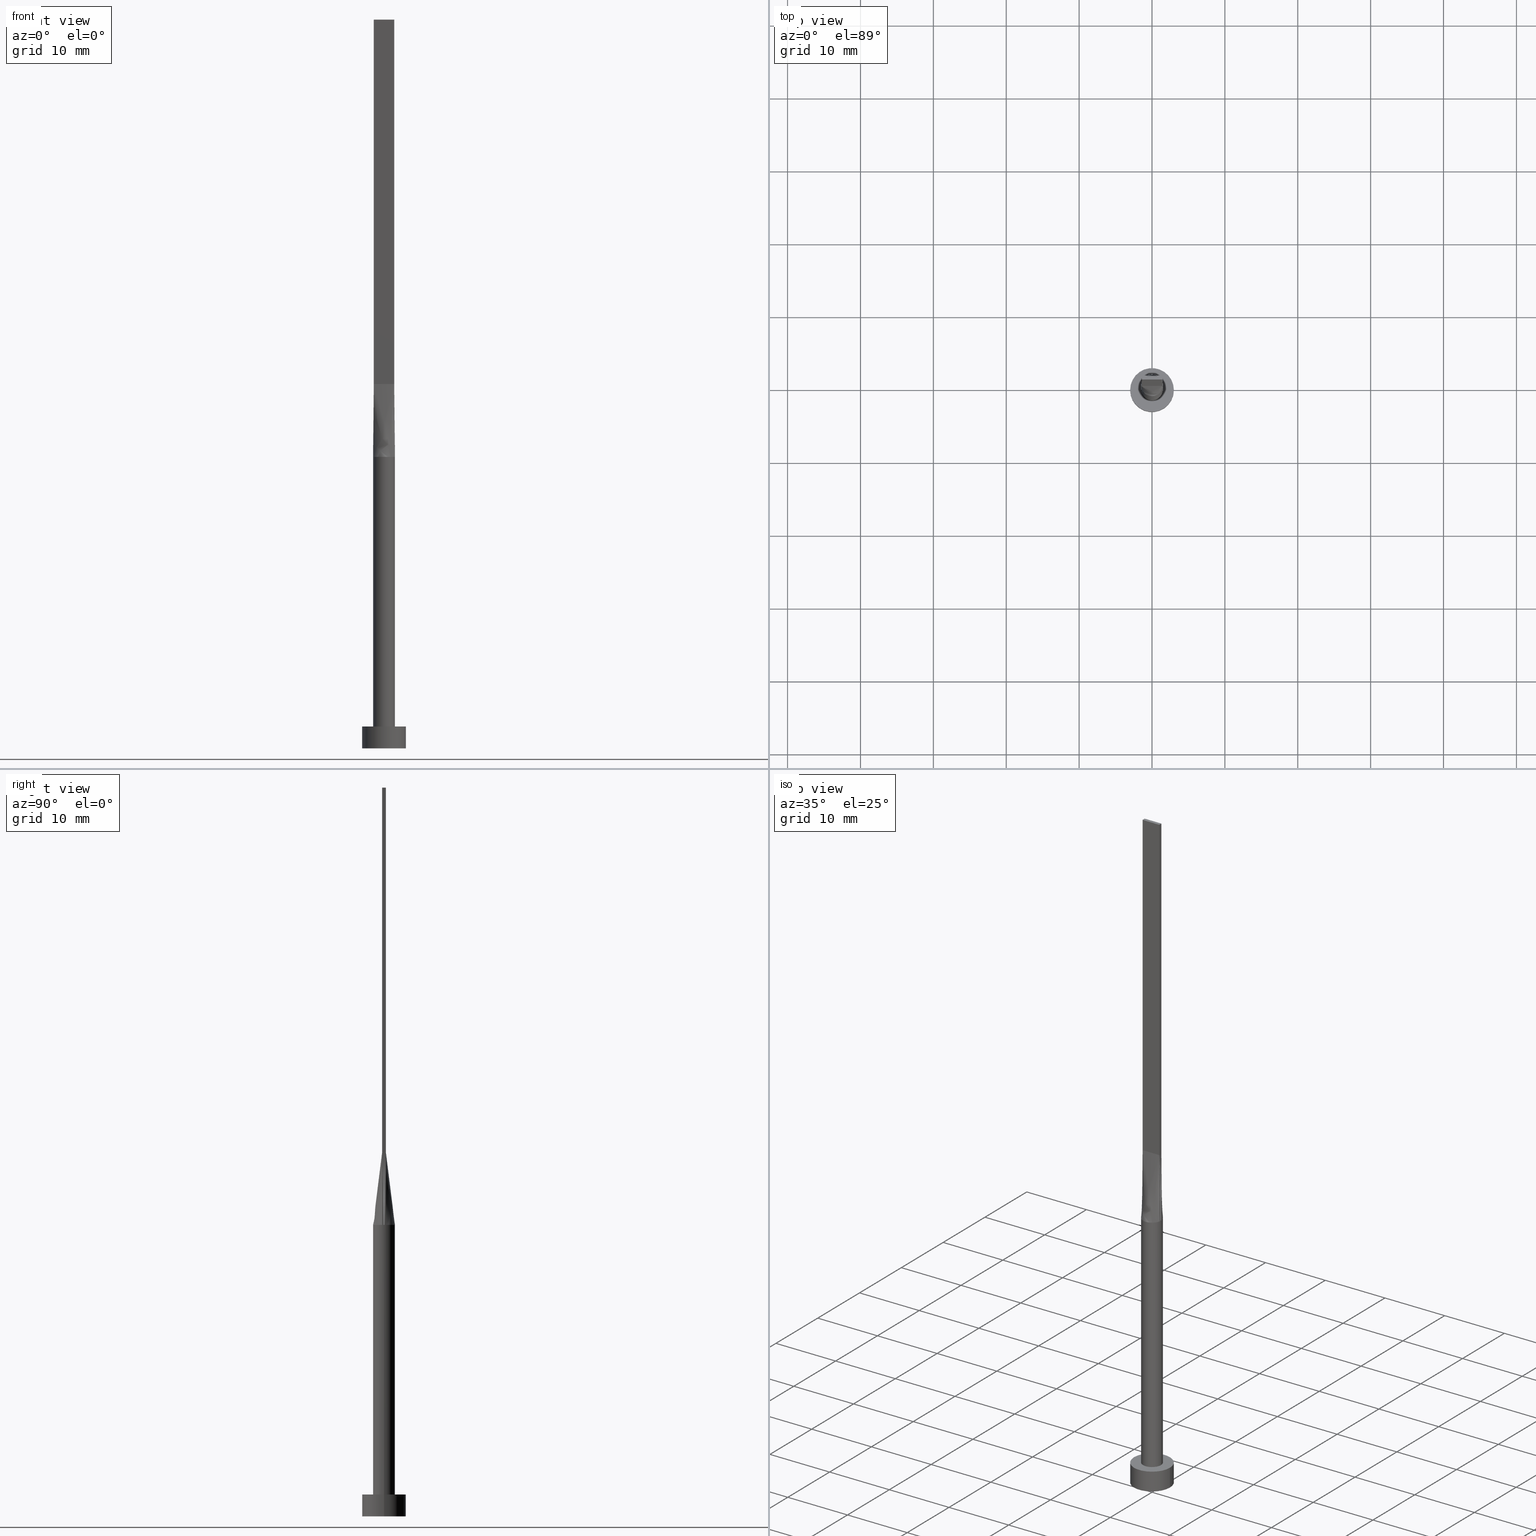
[diagram: canonical four-view strip — front | top / right | iso, engineering-drawing reading convention]
A machine part, canonical four-view strip (front | top / right | iso — engineering-drawing reading convention). The complete STEP part file that produces these views, byte-faithful:
ISO-10303-21;
HEADER;
FILE_DESCRIPTION (( 'STEP AP203' ),
    '1' );
FILE_NAME ('e68c.STEP',
    '2026-02-12T09:01:24',
    ( '' ),
    ( '' ),
    'SwSTEP 2.0',
    'SolidWorks 2019',
    '' );
FILE_SCHEMA (( 'CONFIG_CONTROL_DESIGN' ));
ENDSEC;

DATA;
#1 = ORIENTED_EDGE ( 'NONE', *, *, #581, .F. ) ;
#2 = APPROVAL_STATUS ( 'not_yet_approved' ) ;
#3 = EDGE_CURVE ( 'NONE', #275, #220, #289, .T. ) ;
#4 = EDGE_LOOP ( 'NONE', ( #313, #577, #367, #377 ) ) ;
#5 = ORIENTED_EDGE ( 'NONE', *, *, #11, .T. ) ;
#6 = ORIENTED_EDGE ( 'NONE', *, *, #461, .T. ) ;
#7 = CARTESIAN_POINT ( 'NONE',  ( -0.2093118330951414807, -1.500000000000000666, 40.00000000000000000 ) ) ;
#8 = DATE_TIME_ROLE ( 'classification_date' ) ;
#9 = ORIENTED_EDGE ( 'NONE', *, *, #145, .F. ) ;
#10 = VECTOR ( 'NONE', #28, 1000.000000000000000 ) ;
#11 = EDGE_CURVE ( 'NONE', #354, #326, #384, .T. ) ;
#12 = CARTESIAN_POINT ( 'NONE',  ( 0.5833333333333278192, -0.2499999999999996669, 50.00000000000000000 ) ) ;
#13 = CARTESIAN_POINT ( 'NONE',  ( -1.455009719257779111, -0.3848231641531742464, 39.99999999999999289 ) ) ;
#14 = MECHANICAL_CONTEXT ( 'NONE', #60, 'mechanical' ) ;
#15 = CARTESIAN_POINT ( 'NONE',  ( 1.476641363262723106, -0.2636859577254864750, 40.00000000000000000 ) ) ;
#16 = CARTESIAN_POINT ( 'NONE',  ( 0.7852726932053983866, -1.293660568283137247, 40.00000000000000711 ) ) ;
#17 = CARTESIAN_POINT ( 'NONE',  ( 1.399999999999999911, 0.08333333333333360626, 50.00000000000000000 ) ) ;
#18 = EDGE_LOOP ( 'NONE', ( #139, #6, #144, #181 ) ) ;
#19 = DIRECTION ( 'NONE',  ( 1.000000000000000000, 0.000000000000000000, 0.000000000000000000 ) ) ;
#20 = LOCAL_TIME ( 10, 1, 24.00000000000000000, #194 ) ;
#21 = CARTESIAN_POINT ( 'NONE',  ( -1.193588737715979731, -0.9257784320005619794, 40.00000000000000000 ) ) ;
#22 = EDGE_CURVE ( 'NONE', #98, #217, #387, .T. ) ;
#23 = LINE ( 'NONE', #559, #10 ) ;
#24 = CARTESIAN_POINT ( 'NONE',  ( -1.166666666666668517, -0.2499999999999996669, 50.00000000000000000 ) ) ;
#25 = CARTESIAN_POINT ( 'NONE',  ( 1.399999999999999911, 0.1666666666666669072, 50.00000000000000000 ) ) ;
#26 = CARTESIAN_POINT ( 'NONE',  ( -1.416287091352355976, 0.5163978007200225040, 40.00000000000001421 ) ) ;
#27 = CARTESIAN_POINT ( 'NONE',  ( 1.500000000000000222, 1.836970198721030181E-16, 40.00000000000000000 ) ) ;
#28 = DIRECTION ( 'NONE',  ( -0.000000000000000000, 1.000000000000000000, -0.000000000000000000 ) ) ;
#29 = DIRECTION ( 'NONE',  ( 0.000000000000000000, 0.000000000000000000, 1.000000000000000000 ) ) ;
#30 = CARTESIAN_POINT ( 'NONE',  ( 3.000000000000000444, 3.673940397442060361E-16, 3.000000000000000000 ) ) ;
#31 = LOCAL_TIME ( 10, 1, 24.00000000000000000, #540 ) ;
#32 = DIRECTION ( 'NONE',  ( 1.000000000000000000, -7.105427357601001859E-15, 0.000000000000000000 ) ) ;
#33 = CARTESIAN_POINT ( 'NONE',  ( 1.476765312825354837, 0.2637079867918904474, 40.00000000000000000 ) ) ;
#34 = CARTESIAN_POINT ( 'NONE',  ( 1.399999999999999911, -0.2499999999999997780, 100.0000000000000000 ) ) ;
#35 = B_SPLINE_SURFACE_WITH_KNOTS ( 'NONE', 3, 1, ( 
 ( #418, #421 ),
 ( #13, #164 ),
 ( #510, #24 ),
 ( #112, #554 ),
 ( #21, #61 ),
 ( #495, #420 ),
 ( #328, #197 ),
 ( #412, #330 ),
 ( #7, #369 ),
 ( #160, #277 ),
 ( #333, #101 ),
 ( #16, #546 ),
 ( #458, #12 ),
 ( #284, #454 ),
 ( #109, #234 ),
 ( #195, #238 ),
 ( #232, #378 ),
 ( #15, #286 ) ),
 .UNSPECIFIED., .F., .F., .F.,
 ( 4, 2, 2, 2, 2, 2, 2, 2, 4 ),
 ( 2, 2 ),
 ( 0.000000000000000000, 0.1250000000000000000, 0.2500000000000000000, 0.3750000000000000000, 0.5000000000000000000, 0.6250000000000000000, 0.7500000000000000000, 0.8750000000000000000, 1.000000000000000000 ),
 ( 0.000000000000000000, 1.000000000000000000 ),
 .UNSPECIFIED. ) ;
#36 = PLANE ( 'NONE',  #300 ) ;
#37 = CIRCLE ( 'NONE', #127, 3.000000000000000444 ) ;
#38 = ORIENTED_EDGE ( 'NONE', *, *, #89, .T. ) ;
#39 = EDGE_CURVE ( 'NONE', #98, #372, #513, .T. ) ;
#40 = DIRECTION ( 'NONE',  ( 1.000000000000000000, 0.000000000000000000, 0.000000000000000000 ) ) ;
#41 = CARTESIAN_POINT ( 'NONE',  ( -1.455009719257779111, 0.3848231641531745795, 40.00000000000000000 ) ) ;
#42 = EDGE_CURVE ( 'NONE', #372, #505, #257, .T. ) ;
#43 = EDGE_CURVE ( 'NONE', #401, #326, #562, .T. ) ;
#44 = CIRCLE ( 'NONE', #370, 3.000000000000000444 ) ;
#45 = AXIS2_PLACEMENT_3D ( 'NONE', #227, #498, #406 ) ;
#46 = ORIENTED_EDGE ( 'NONE', *, *, #309, .F. ) ;
#47 = PERSON_AND_ORGANIZATION ( #337, #468 ) ;
#48 = CARTESIAN_POINT ( 'NONE',  ( 0.8166666666666670960, 0.2500000000000002220, 50.00000000000000000 ) ) ;
#49 = PERSON_AND_ORGANIZATION ( #337, #468 ) ;
#50 = CARTESIAN_POINT ( 'NONE',  ( -1.476780214353118348, -0.2637106662004926605, 40.00000000000000000 ) ) ;
#51 = CARTESIAN_POINT ( 'NONE',  ( 0.9436169880431070078, 1.179536671679307869, 39.99999999999998579 ) ) ;
#52 = ADVANCED_FACE ( 'NONE', ( #346 ), #515, .T. ) ;
#53 = PERSON_AND_ORGANIZATION_ROLE ( 'design_supplier' ) ;
#54 = DIRECTION ( 'NONE',  ( -0.000000000000000000, -0.000000000000000000, -1.000000000000000000 ) ) ;
#55 = VECTOR ( 'NONE', #580, 1000.000000000000000 ) ;
#56 = CALENDAR_DATE ( 2026, 12, 2 ) ;
#57 = ADVANCED_FACE ( 'NONE', ( #298 ), #75, .T. ) ;
#58 = CC_DESIGN_APPROVAL ( #352, ( #271 ) ) ;
#59 = CARTESIAN_POINT ( 'NONE',  ( -1.399999999999999911, -0.2499999999999996392, 100.0000000000000000 ) ) ;
#60 = APPLICATION_CONTEXT ( 'configuration controlled 3d designs of mechanical parts and assemblies' ) ;
#61 = CARTESIAN_POINT ( 'NONE',  ( -0.8166666666666710928, -0.2499999999999996669, 50.00000000000000000 ) ) ;
#62 = FACE_BOUND ( 'NONE', #202, .T. ) ;
#63 = CARTESIAN_POINT ( 'NONE',  ( 1.476641363262723328, 0.2636859577254862530, 40.00000000000000000 ) ) ;
#64 =( LENGTH_UNIT ( ) NAMED_UNIT ( * ) SI_UNIT ( .MILLI., .METRE. ) );
#65 = CIRCLE ( 'NONE', #381, 1.500000000000000222 ) ;
#66 = CARTESIAN_POINT ( 'NONE',  ( 1.476765312825354837, 0.2637079867918904474, 40.00000000000000000 ) ) ;
#67 = DIRECTION ( 'NONE',  ( -0.000000000000000000, -0.000000000000000000, -1.000000000000000000 ) ) ;
#68 = DIRECTION ( 'NONE',  ( 1.000000000000000000, 0.000000000000000000, -0.000000000000000000 ) ) ;
#69 = FACE_OUTER_BOUND ( 'NONE', #87, .T. ) ;
#70 = CARTESIAN_POINT ( 'NONE',  ( 1.399999999999999911, -0.2499999999999997780, 100.0000000000000000 ) ) ;
#71 = CARTESIAN_POINT ( 'NONE',  ( 0.000000000000000000, 0.000000000000000000, 0.000000000000000000 ) ) ;
#72 = CARTESIAN_POINT ( 'NONE',  ( -1.399999999999999911, -0.08333333333333300952, 50.00000000000000000 ) ) ;
#73 = VECTOR ( 'NONE', #391, 999.9999999999998863 ) ;
#74 = CARTESIAN_POINT ( 'NONE',  ( 1.399999999999999911, 0.2500000000000002220, 50.00000000000000000 ) ) ;
#75 = CYLINDRICAL_SURFACE ( 'NONE', #210, 1.500000000000000222 ) ;
#76 = VECTOR ( 'NONE', #465, 1000.000000000000000 ) ;
#77 = ORIENTED_EDGE ( 'NONE', *, *, #279, .F. ) ;
#78 = FACE_OUTER_BOUND ( 'NONE', #382, .T. ) ;
#79 = CARTESIAN_POINT ( 'NONE',  ( -1.476641363262723328, 0.2636859577254859754, 40.00000000000000000 ) ) ;
#80 = PRODUCT ( 'e68c', 'e68c', '', ( #14 ) ) ;
#81 = ORIENTED_EDGE ( 'NONE', *, *, #431, .T. ) ;
#82 = DIRECTION ( 'NONE',  ( -0.007663904067361680499, 0.001368554297743197626, 0.9999696953576046043 ) ) ;
#83 = CARTESIAN_POINT ( 'NONE',  ( -1.476641363262723328, -0.2636859577254855869, 40.00000000000000000 ) ) ;
#84 = EDGE_CURVE ( 'NONE', #556, #304, #137, .T. ) ;
#85 = CARTESIAN_POINT ( 'NONE',  ( 3.000000000000000444, 3.673940397442060361E-16, 0.000000000000000000 ) ) ;
#86 = VECTOR ( 'NONE', #82, 999.9999999999998863 ) ;
#87 = EDGE_LOOP ( 'NONE', ( #103, #497, #338, #262, #395, #148 ) ) ;
#88 = ORIENTED_EDGE ( 'NONE', *, *, #409, .T. ) ;
#89 = EDGE_CURVE ( 'NONE', #217, #505, #307, .T. ) ;
#90 = VERTEX_POINT ( 'NONE', #85 ) ;
#91 = COORDINATED_UNIVERSAL_TIME_OFFSET ( 1, 0, .AHEAD. ) ;
#92 = EDGE_CURVE ( 'NONE', #191, #539, #402, .T. ) ;
#93 = LOCAL_TIME ( 10, 1, 24.00000000000000000, #329 ) ;
#94 = PERSON_AND_ORGANIZATION_ROLE ( 'creator' ) ;
#95 = ORIENTED_EDGE ( 'NONE', *, *, #319, .T. ) ;
#96 = CARTESIAN_POINT ( 'NONE',  ( 1.399999999999999911, -0.2499999999999997780, 100.0000000000000000 ) ) ;
#97 = PRODUCT_RELATED_PRODUCT_CATEGORY ( 'detail', '', ( #80 ) ) ;
#98 = VERTEX_POINT ( 'NONE', #438 ) ;
#99 = CALENDAR_DATE ( 2026, 12, 2 ) ;
#100 = ORIENTED_EDGE ( 'NONE', *, *, #162, .T. ) ;
#101 = CARTESIAN_POINT ( 'NONE',  ( 0.2333333333333268145, -0.2499999999999996669, 50.00000000000000000 ) ) ;
#102 = EDGE_CURVE ( 'NONE', #326, #401, #388, .T. ) ;
#103 = ORIENTED_EDGE ( 'NONE', *, *, #11, .F. ) ;
#104 = PERSON_AND_ORGANIZATION ( #337, #468 ) ;
#105 = DIRECTION ( 'NONE',  ( 0.000000000000000000, 1.000000000000000000, 0.000000000000000000 ) ) ;
#106 = CARTESIAN_POINT ( 'NONE',  ( -1.399999999999999911, 0.2500000000000002220, 50.00000000000000000 ) ) ;
#107 = CARTESIAN_POINT ( 'NONE',  ( -1.399999999999999911, 0.2500000000000002220, 100.0000000000000000 ) ) ;
#108 = EDGE_LOOP ( 'NONE', ( #236, #152, #411, #111, #440 ) ) ;
#109 = CARTESIAN_POINT ( 'NONE',  ( 1.285860877433234961, -0.7868275653575079742, 40.00000000000000711 ) ) ;
#110 = CARTESIAN_POINT ( 'NONE',  ( 1.399999999999999911, -0.2499999999999997780, 50.00000000000000000 ) ) ;
#111 = ORIENTED_EDGE ( 'NONE', *, *, #568, .F. ) ;
#112 = CARTESIAN_POINT ( 'NONE',  ( -1.285860877433235405, -0.7868275653575071971, 40.00000000000000000 ) ) ;
#113 = DIRECTION ( 'NONE',  ( 0.000000000000000000, 0.000000000000000000, 1.000000000000000000 ) ) ;
#114 = AXIS2_PLACEMENT_3D ( 'NONE', #302, #444, #40 ) ;
#115 = CIRCLE ( 'NONE', #494, 1.500000000000000222 ) ;
#116 = CARTESIAN_POINT ( 'NONE',  ( 1.399999999999999911, 0.2500000000000002220, 100.0000000000000000 ) ) ;
#117 = PRODUCT_DEFINITION ( 'NEZN�M�', '', #271, #549 ) ;
#118 = PLANE ( 'NONE',  #146 ) ;
#119 = PLANE ( 'NONE',  #228 ) ;
#120 = CARTESIAN_POINT ( 'NONE',  ( 0.000000000000000000, 0.000000000000000000, 40.00000000000000000 ) ) ;
#121 = CARTESIAN_POINT ( 'NONE',  ( 0.000000000000000000, 0.000000000000000000, 40.00000000000000000 ) ) ;
#122 = CARTESIAN_POINT ( 'NONE',  ( -1.438320681631361619, -0.2568429788627425991, 45.00000000000000000 ) ) ;
#123 = DIRECTION ( 'NONE',  ( -1.000000000000000000, 0.000000000000000000, 0.000000000000000000 ) ) ;
#124 = ORIENTED_EDGE ( 'NONE', *, *, #102, .F. ) ;
#125 = DIRECTION ( 'NONE',  ( 0.000000000000000000, 0.000000000000000000, 1.000000000000000000 ) ) ;
#126 = LINE ( 'NONE', #254, #177 ) ;
#127 = AXIS2_PLACEMENT_3D ( 'NONE', #521, #29, #173 ) ;
#128 = LINE ( 'NONE', #122, #73 ) ;
#129 = VERTEX_POINT ( 'NONE', #446 ) ;
#130 = CARTESIAN_POINT ( 'NONE',  ( -0.9436169880431073409, 1.179536671679307647, 40.00000000000000000 ) ) ;
#131 = CARTESIAN_POINT ( 'NONE',  ( 0.000000000000000000, 0.000000000000000000, 40.00000000000000000 ) ) ;
#132 = DIRECTION ( 'NONE',  ( 1.000000000000000000, 0.000000000000000000, 0.000000000000000000 ) ) ;
#133 = ORIENTED_EDGE ( 'NONE', *, *, #461, .F. ) ;
#134 = CARTESIAN_POINT ( 'NONE',  ( -0.4666666666666664520, 0.2500000000000002220, 50.00000000000000000 ) ) ;
#135 = CARTESIAN_POINT ( 'NONE',  ( -1.399999999999999911, 0.2500000000000002220, 100.0000000000000000 ) ) ;
#136 = VERTEX_POINT ( 'NONE', #140 ) ;
#137 = CIRCLE ( 'NONE', #114, 1.500000000000000222 ) ;
#138 = EDGE_CURVE ( 'NONE', #129, #539, #259, .T. ) ;
#139 = ORIENTED_EDGE ( 'NONE', *, *, #487, .T. ) ;
#140 = CARTESIAN_POINT ( 'NONE',  ( 3.000000000000000444, 3.673940397442060361E-16, 3.000000000000000000 ) ) ;
#141 = ORIENTED_EDGE ( 'NONE', *, *, #84, .T. ) ;
#142 = SECURITY_CLASSIFICATION_LEVEL ( 'unclassified' ) ;
#143 = CALENDAR_DATE ( 2026, 12, 2 ) ;
#144 = ORIENTED_EDGE ( 'NONE', *, *, #89, .F. ) ;
#145 = EDGE_CURVE ( 'NONE', #214, #90, #360, .T. ) ;
#146 = AXIS2_PLACEMENT_3D ( 'NONE', #166, #113, #207 ) ;
#147 = EDGE_LOOP ( 'NONE', ( #81, #186, #460, #416 ) ) ;
#148 = ORIENTED_EDGE ( 'NONE', *, *, #43, .T. ) ;
#149 = LINE ( 'NONE', #96, #407 ) ;
#150 = FACE_OUTER_BOUND ( 'NONE', #147, .T. ) ;
#151 = CARTESIAN_POINT ( 'NONE',  ( 0.5833333333333337034, 0.2500000000000002220, 50.00000000000000000 ) ) ;
#152 = ORIENTED_EDGE ( 'NONE', *, *, #581, .T. ) ;
#153 = CARTESIAN_POINT ( 'NONE',  ( -1.399999999999999911, -0.2499999999999996392, 100.0000000000000000 ) ) ;
#154 = ORIENTED_EDGE ( 'NONE', *, *, #102, .T. ) ;
#155 = PERSON_AND_ORGANIZATION_ROLE ( 'classification_officer' ) ;
#156 = CARTESIAN_POINT ( 'NONE',  ( -1.399999999999999911, 0.2500000000000002220, 50.00000000000000000 ) ) ;
#157 = ADVANCED_FACE ( 'NONE', ( #78 ), #216, .F. ) ;
#158 = VECTOR ( 'NONE', #213, 1000.000000000000000 ) ;
#159 = CC_DESIGN_DATE_AND_TIME_ASSIGNMENT ( #364, #551, ( #117 ) ) ;
#160 = CARTESIAN_POINT ( 'NONE',  ( 0.2093118330951404815, -1.500000000000000444, 39.99999999999998579 ) ) ;
#161 = CARTESIAN_POINT ( 'NONE',  ( 1.399999999999999911, 0.2500000000000002220, 50.00000000000000000 ) ) ;
#162 = EDGE_CURVE ( 'NONE', #572, #214, #477, .T. ) ;
#163 = CARTESIAN_POINT ( 'NONE',  ( -0.4178861784692550208, 1.454504042781961326, 40.00000000000000711 ) ) ;
#164 = CARTESIAN_POINT ( 'NONE',  ( -1.283333333333334325, -0.2499999999999996669, 50.00000000000000000 ) ) ;
#165 = CARTESIAN_POINT ( 'NONE',  ( 0.000000000000000000, 0.000000000000000000, 3.000000000000000000 ) ) ;
#166 = CARTESIAN_POINT ( 'NONE',  ( 0.000000000000000000, 0.000000000000000000, 3.000000000000000000 ) ) ;
#167 = LOCAL_TIME ( 10, 1, 24.00000000000000000, #91 ) ;
#168 = CARTESIAN_POINT ( 'NONE',  ( 1.285860877433235405, 0.7868275653575075301, 40.00000000000000000 ) ) ;
#169 = DIRECTION ( 'NONE',  ( 0.000000000000000000, 0.000000000000000000, 1.000000000000000000 ) ) ;
#170 = CARTESIAN_POINT ( 'NONE',  ( 1.399999999999999911, -0.2499999999999997780, 50.00000000000000000 ) ) ;
#171 = VERTEX_POINT ( 'NONE', #33 ) ;
#172 = CARTESIAN_POINT ( 'NONE',  ( -1.399999999999999911, -0.2499999999999996392, 50.00000000000000000 ) ) ;
#173 = DIRECTION ( 'NONE',  ( 1.000000000000000000, 0.000000000000000000, 0.000000000000000000 ) ) ;
#174 = DIRECTION ( 'NONE',  ( 0.000000000000000000, -0.000000000000000000, -1.000000000000000000 ) ) ;
#175 = CARTESIAN_POINT ( 'NONE',  ( -0.7852726932053990527, 1.293660568283136136, 40.00000000000000711 ) ) ;
#176 = CARTESIAN_POINT ( 'NONE',  ( 1.499909062348296462, 3.515891419768138559E-16, 40.00000000000000000 ) ) ;
#177 = VECTOR ( 'NONE', #484, 1000.000000000000000 ) ;
#178 = CARTESIAN_POINT ( 'NONE',  ( -1.193588737715979731, 0.9257784320005616463, 39.99999999999999289 ) ) ;
#179 = ORIENTED_EDGE ( 'NONE', *, *, #519, .T. ) ;
#180 = LINE ( 'NONE', #356, #524 ) ;
#181 = ORIENTED_EDGE ( 'NONE', *, *, #550, .F. ) ;
#182 = CARTESIAN_POINT ( 'NONE',  ( 1.438320681631361397, -0.2568429788627430987, 45.00000000000000000 ) ) ;
#183 = AXIS2_PLACEMENT_3D ( 'NONE', #394, #518, #174 ) ;
#184 = CC_DESIGN_SECURITY_CLASSIFICATION ( #290, ( #271 ) ) ;
#185 = ADVANCED_BREP_SHAPE_REPRESENTATION ( 'e68c', ( #492, #45 ), #563 ) ;
#186 = ORIENTED_EDGE ( 'NONE', *, *, #92, .T. ) ;
#187 = DATE_AND_TIME ( #448, #93 ) ;
#188 = ORIENTED_EDGE ( 'NONE', *, *, #39, .F. ) ;
#189 = COORDINATED_UNIVERSAL_TIME_OFFSET ( 1, 0, .AHEAD. ) ;
#190 = CARTESIAN_POINT ( 'NONE',  ( 1.166666666666666963, 0.2500000000000002220, 50.00000000000000000 ) ) ;
#191 = VERTEX_POINT ( 'NONE', #522 ) ;
#192 = DIRECTION ( 'NONE',  ( -0.000000000000000000, -0.000000000000000000, -1.000000000000000000 ) ) ;
#193 = CARTESIAN_POINT ( 'NONE',  ( 0.7852726932053988307, 1.293660568283136358, 40.00000000000000711 ) ) ;
#194 = COORDINATED_UNIVERSAL_TIME_OFFSET ( 1, 0, .AHEAD. ) ;
#195 = CARTESIAN_POINT ( 'NONE',  ( 1.416287091352355532, -0.5163978007200231701, 40.00000000000001421 ) ) ;
#196 = APPROVAL_ROLE ( '' ) ;
#197 = CARTESIAN_POINT ( 'NONE',  ( -0.4666666666666726138, -0.2499999999999996669, 50.00000000000000711 ) ) ;
#198 = EDGE_CURVE ( 'NONE', #129, #335, #128, .T. ) ;
#199 = CARTESIAN_POINT ( 'NONE',  ( -1.500000000000000222, 0.000000000000000000, 40.00000000000000000 ) ) ;
#200 = AXIS2_PLACEMENT_3D ( 'NONE', #315, #263, #358 ) ;
#201 = FACE_OUTER_BOUND ( 'NONE', #18, .T. ) ;
#202 = EDGE_LOOP ( 'NONE', ( #536, #124 ) ) ;
#203 = VECTOR ( 'NONE', #294, 999.9999999999998863 ) ;
#204 = CARTESIAN_POINT ( 'NONE',  ( 0.7852726932053988307, 1.293660568283136358, 40.00000000000000711 ) ) ;
#205 = CARTESIAN_POINT ( 'NONE',  ( 1.399999999999999911, 0.2500000000000002220, 100.0000000000000000 ) ) ;
#206 = CC_DESIGN_PERSON_AND_ORGANIZATION_ASSIGNMENT ( #49, #53, ( #271 ) ) ;
#207 = DIRECTION ( 'NONE',  ( 1.000000000000000000, 0.000000000000000000, -0.000000000000000000 ) ) ;
#208 = CARTESIAN_POINT ( 'NONE',  ( -0.2093118330951410921, 1.500000000000000222, 39.99999999999998579 ) ) ;
#209 = CARTESIAN_POINT ( 'NONE',  ( 1.193588737715979509, 0.9257784320005622014, 40.00000000000000000 ) ) ;
#210 = AXIS2_PLACEMENT_3D ( 'NONE', #131, #483, #224 ) ;
#211 = AXIS2_PLACEMENT_3D ( 'NONE', #121, #530, #215 ) ;
#212 = DIRECTION ( 'NONE',  ( 0.000000000000000000, 0.000000000000000000, 1.000000000000000000 ) ) ;
#213 = DIRECTION ( 'NONE',  ( -0.000000000000000000, -0.000000000000000000, -1.000000000000000000 ) ) ;
#214 = VERTEX_POINT ( 'NONE', #433 ) ;
#215 = DIRECTION ( 'NONE',  ( -1.000000000000000000, 0.000000000000000000, 0.000000000000000000 ) ) ;
#216 = PLANE ( 'NONE',  #183 ) ;
#217 = VERTEX_POINT ( 'NONE', #74 ) ;
#218 = CARTESIAN_POINT ( 'NONE',  ( -0.1166666666666666685, 0.2500000000000002220, 50.00000000000000711 ) ) ;
#219 = CARTESIAN_POINT ( 'NONE',  ( -1.438320681631361619, 0.2568429788627429322, 45.00000000000000000 ) ) ;
#220 = VERTEX_POINT ( 'NONE', #70 ) ;
#221 = B_SPLINE_SURFACE_WITH_KNOTS ( 'NONE', 3, 1, ( 
 ( #79, #308 ),
 ( #349, #311 ),
 ( #432, #260 ),
 ( #435, #72 ),
 ( #390, #344 ),
 ( #83, #514 ) ),
 .UNSPECIFIED., .F., .F., .F.,
 ( 4, 2, 4 ),
 ( 2, 2 ),
 ( 0.000000000000000000, 0.5000000000000000000, 1.000000000000000000 ),
 ( 0.000000000000000000, 1.000000000000000000 ),
 .UNSPECIFIED. ) ;
#222 = DIRECTION ( 'NONE',  ( -1.000000000000000000, 0.000000000000000000, 0.000000000000000000 ) ) ;
#223 = AXIS2_PLACEMENT_3D ( 'NONE', #249, #212, #132 ) ;
#224 = DIRECTION ( 'NONE',  ( -1.000000000000000000, 0.000000000000000000, 0.000000000000000000 ) ) ;
#225 = EDGE_CURVE ( 'NONE', #136, #90, #250, .T. ) ;
#226 = ORIENTED_EDGE ( 'NONE', *, *, #471, .F. ) ;
#227 = CARTESIAN_POINT ( 'NONE',  ( 0.000000000000000000, 0.000000000000000000, 0.000000000000000000 ) ) ;
#228 = AXIS2_PLACEMENT_3D ( 'NONE', #570, #476, #396 ) ;
#229 = VECTOR ( 'NONE', #291, 999.9999999999998863 ) ;
#230 = ADVANCED_FACE ( 'NONE', ( #256 ), #397, .T. ) ;
#231 = SHAPE_DEFINITION_REPRESENTATION ( #533, #185 ) ;
#232 = CARTESIAN_POINT ( 'NONE',  ( 1.455009719257778888, -0.3848231641531754121, 40.00000000000000000 ) ) ;
#233 = DATE_AND_TIME ( #99, #20 ) ;
#234 = CARTESIAN_POINT ( 'NONE',  ( 0.9333333333333295734, -0.2499999999999997224, 50.00000000000000000 ) ) ;
#235 = AXIS2_PLACEMENT_3D ( 'NONE', #548, #192, #274 ) ;
#236 = ORIENTED_EDGE ( 'NONE', *, *, #429, .T. ) ;
#237 = DATE_AND_TIME ( #56, #167 ) ;
#238 = CARTESIAN_POINT ( 'NONE',  ( 1.166666666666664298, -0.2499999999999997780, 50.00000000000000000 ) ) ;
#239 = CARTESIAN_POINT ( 'NONE',  ( 0.000000000000000000, 0.000000000000000000, 3.000000000000000000 ) ) ;
#240 = CARTESIAN_POINT ( 'NONE',  ( 1.399999999999999911, -0.08333333333333306503, 50.00000000000000000 ) ) ;
#241 = ORIENTED_EDGE ( 'NONE', *, *, #487, .F. ) ;
#242 = CARTESIAN_POINT ( 'NONE',  ( -1.476774769252511055, 0.2637095436881764510, 40.00000000000000000 ) ) ;
#243 = CC_DESIGN_PERSON_AND_ORGANIZATION_ASSIGNMENT ( #281, #155, ( #290 ) ) ;
#244 = CARTESIAN_POINT ( 'NONE',  ( 1.283333333333333659, 0.2500000000000002220, 50.00000000000000000 ) ) ;
#245 =( NAMED_UNIT ( * ) PLANE_ANGLE_UNIT ( ) SI_UNIT ( $, .RADIAN. ) );
#246 = CARTESIAN_POINT ( 'NONE',  ( -1.399999999999999911, -0.2499999999999996392, 100.0000000000000000 ) ) ;
#247 = CARTESIAN_POINT ( 'NONE',  ( 0.4178861784692547432, 1.454504042781961770, 40.00000000000001421 ) ) ;
#248 =( NAMED_UNIT ( * ) SI_UNIT ( $, .STERADIAN. ) SOLID_ANGLE_UNIT ( ) );
#249 = CARTESIAN_POINT ( 'NONE',  ( 0.000000000000000000, 0.000000000000000000, 40.00000000000000000 ) ) ;
#250 = LINE ( 'NONE', #30, #158 ) ;
#251 = ORIENTED_EDGE ( 'NONE', *, *, #414, .F. ) ;
#252 = CARTESIAN_POINT ( 'NONE',  ( -1.455009719257779111, 0.3848231641531745795, 40.00000000000000000 ) ) ;
#253 = VECTOR ( 'NONE', #350, 1000.000000000000000 ) ;
#254 = CARTESIAN_POINT ( 'NONE',  ( 1.399999999999999911, -0.2499999999999997780, 100.0000000000000000 ) ) ;
#255 = ADVANCED_FACE ( 'NONE', ( #201 ), #306, .T. ) ;
#256 = FACE_OUTER_BOUND ( 'NONE', #108, .T. ) ;
#257 = LINE ( 'NONE', #341, #368 ) ;
#258 = ORIENTED_EDGE ( 'NONE', *, *, #145, .T. ) ;
#259 = LINE ( 'NONE', #172, #534 ) ;
#260 = CARTESIAN_POINT ( 'NONE',  ( -1.399999999999999911, 0.08333333333333359239, 50.00000000000000000 ) ) ;
#261 = ADVANCED_FACE ( 'NONE', ( #150 ), #35, .T. ) ;
#262 = ORIENTED_EDGE ( 'NONE', *, *, #365, .F. ) ;
#263 = DIRECTION ( 'NONE',  ( 0.000000000000000000, 0.000000000000000000, 1.000000000000000000 ) ) ;
#264 = CARTESIAN_POINT ( 'NONE',  ( 0.000000000000000000, 0.000000000000000000, 40.00000000000000000 ) ) ;
#265 = CARTESIAN_POINT ( 'NONE',  ( -1.416287091352355976, 0.5163978007200225040, 40.00000000000001421 ) ) ;
#266 = EDGE_LOOP ( 'NONE', ( #141, #443, #491, #403, #133 ) ) ;
#267 = APPROVAL_PERSON_ORGANIZATION ( #538, #352, #501 ) ;
#268 = CARTESIAN_POINT ( 'NONE',  ( -0.8166666666666665408, 0.2500000000000002220, 50.00000000000000000 ) ) ;
#269 = ADVANCED_FACE ( 'NONE', ( #422 ), #507, .T. ) ;
#270 = EDGE_LOOP ( 'NONE', ( #493, #569, #280, #323 ) ) ;
#271 = PRODUCT_DEFINITION_FORMATION_WITH_SPECIFIED_SOURCE ( 'LIBOVOLN�', '', #80, .NOT_KNOWN. ) ;
#272 = CARTESIAN_POINT ( 'NONE',  ( 1.285860877433235405, 0.7868275653575075301, 40.00000000000000000 ) ) ;
#273 = APPROVAL_DATE_TIME ( #233, #352 ) ;
#274 = DIRECTION ( 'NONE',  ( -1.000000000000000000, 0.000000000000000000, 0.000000000000000000 ) ) ;
#275 = VERTEX_POINT ( 'NONE', #59 ) ;
#276 = EDGE_LOOP ( 'NONE', ( #398, #347, #100, #258 ) ) ;
#277 = CARTESIAN_POINT ( 'NONE',  ( 0.1166666666666600211, -0.2499999999999996669, 50.00000000000000711 ) ) ;
#278 = CARTESIAN_POINT ( 'NONE',  ( 0.2093118330951408979, 1.500000000000000666, 40.00000000000000000 ) ) ;
#279 = EDGE_CURVE ( 'NONE', #136, #572, #44, .T. ) ;
#280 = ORIENTED_EDGE ( 'NONE', *, *, #288, .F. ) ;
#281 = PERSON_AND_ORGANIZATION ( #337, #468 ) ;
#282 = DIRECTION ( 'NONE',  ( -1.000000000000000000, 5.808225924029488744E-17, 0.000000000000000000 ) ) ;
#283 = AXIS2_PLACEMENT_3D ( 'NONE', #71, #336, #475 ) ;
#284 = CARTESIAN_POINT ( 'NONE',  ( 1.193588737715979509, -0.9257784320005624235, 39.99999999999998579 ) ) ;
#285 = PLANE ( 'NONE',  #545 ) ;
#286 = CARTESIAN_POINT ( 'NONE',  ( 1.399999999999999911, -0.2499999999999997780, 50.00000000000000000 ) ) ;
#287 = CARTESIAN_POINT ( 'NONE',  ( -3.000000000000000444, 0.000000000000000000, 3.000000000000000000 ) ) ;
#288 = EDGE_CURVE ( 'NONE', #220, #98, #149, .T. ) ;
#289 = LINE ( 'NONE', #246, #399 ) ;
#290 = SECURITY_CLASSIFICATION ( '', '', #142 ) ;
#291 = DIRECTION ( 'NONE',  ( -0.007663904067361702183, -0.001368554297743154041, 0.9999696953576046043 ) ) ;
#292 = DIRECTION ( 'NONE',  ( -1.000000000000000000, 0.000000000000000000, 0.000000000000000000 ) ) ;
#293 = CARTESIAN_POINT ( 'NONE',  ( 1.455009719257779111, 0.3848231641531748570, 39.99999999999999289 ) ) ;
#294 = DIRECTION ( 'NONE',  ( 0.007663904067361702183, -0.001368554297743072943, 0.9999696953576046043 ) ) ;
#295 = CC_DESIGN_PERSON_AND_ORGANIZATION_ASSIGNMENT ( #47, #451, ( #271 ) ) ;
#296 = CARTESIAN_POINT ( 'NONE',  ( 0.2093118330951408979, 1.500000000000000666, 40.00000000000000000 ) ) ;
#297 = PLANE ( 'NONE',  #449 ) ;
#298 = FACE_OUTER_BOUND ( 'NONE', #359, .T. ) ;
#299 = ORIENTED_EDGE ( 'NONE', *, *, #138, .T. ) ;
#300 = AXIS2_PLACEMENT_3D ( 'NONE', #400, #578, #473 ) ;
#301 = EDGE_CURVE ( 'NONE', #372, #275, #379, .T. ) ;
#302 = CARTESIAN_POINT ( 'NONE',  ( 0.000000000000000000, 0.000000000000000000, 40.00000000000000000 ) ) ;
#303 = DIRECTION ( 'NONE',  ( 0.000000000000000000, 0.000000000000000000, 1.000000000000000000 ) ) ;
#304 = VERTEX_POINT ( 'NONE', #417 ) ;
#305 = CARTESIAN_POINT ( 'NONE',  ( -0.5833333333333330373, 0.2500000000000002220, 50.00000000000000000 ) ) ;
#306 = B_SPLINE_SURFACE_WITH_KNOTS ( 'NONE', 3, 1, ( 
 ( #63, #161 ),
 ( #334, #244 ),
 ( #426, #190 ),
 ( #272, #450 ),
 ( #496, #48 ),
 ( #51, #151 ),
 ( #193, #371 ),
 ( #547, #325 ),
 ( #278, #525 ),
 ( #574, #218 ),
 ( #355, #528 ),
 ( #175, #134 ),
 ( #130, #305 ),
 ( #178, #268 ),
 ( #357, #445 ),
 ( #265, #310 ),
 ( #41, #442 ),
 ( #553, #106 ) ),
 .UNSPECIFIED., .F., .F., .F.,
 ( 4, 2, 2, 2, 2, 2, 2, 2, 4 ),
 ( 2, 2 ),
 ( 0.000000000000000000, 0.1249999999999999167, 0.2499999999999998335, 0.3749999999999998335, 0.4999999999999998890, 0.6249999999999998890, 0.7499999999999998890, 0.8750000000000000000, 1.000000000000000000 ),
 ( 0.000000000000000000, 1.000000000000000000 ),
 .UNSPECIFIED. ) ;
#307 = LINE ( 'NONE', #529, #55 ) ;
#308 = CARTESIAN_POINT ( 'NONE',  ( -1.399999999999999911, 0.2500000000000002220, 50.00000000000000000 ) ) ;
#309 = EDGE_CURVE ( 'NONE', #304, #401, #324, .T. ) ;
#310 = CARTESIAN_POINT ( 'NONE',  ( -1.166666666666666519, 0.2500000000000002220, 50.00000000000000000 ) ) ;
#311 = CARTESIAN_POINT ( 'NONE',  ( -1.399999999999999911, 0.1666666666666669072, 50.00000000000000000 ) ) ;
#312 = ADVANCED_FACE ( 'NONE', ( #508 ), #375, .F. ) ;
#313 = ORIENTED_EDGE ( 'NONE', *, *, #39, .T. ) ;
#314 = EDGE_LOOP ( 'NONE', ( #95, #226, #541, #455 ) ) ;
#315 = CARTESIAN_POINT ( 'NONE',  ( 0.000000000000000000, 0.000000000000000000, 3.000000000000000000 ) ) ;
#316 = AXIS2_PLACEMENT_3D ( 'NONE', #165, #437, #340 ) ;
#317 = ORIENTED_EDGE ( 'NONE', *, *, #3, .F. ) ;
#318 = APPLICATION_PROTOCOL_DEFINITION ( 'international standard', 'config_control_design', 1994, #490 ) ;
#319 = EDGE_CURVE ( 'NONE', #505, #129, #552, .T. ) ;
#320 = ORIENTED_EDGE ( 'NONE', *, *, #42, .F. ) ;
#321 = APPROVAL_PERSON_ORGANIZATION ( #419, #503, #196 ) ;
#322 = APPROVAL_ROLE ( '' ) ;
#323 = ORIENTED_EDGE ( 'NONE', *, *, #414, .T. ) ;
#324 = LINE ( 'NONE', #199, #332 ) ;
#325 = CARTESIAN_POINT ( 'NONE',  ( 0.2333333333333335036, 0.2500000000000002220, 50.00000000000000000 ) ) ;
#326 = VERTEX_POINT ( 'NONE', #555 ) ;
#327 = APPROVAL_STATUS ( 'not_yet_approved' ) ;
#328 = CARTESIAN_POINT ( 'NONE',  ( -0.7852726932053994968, -1.293660568283136136, 40.00000000000000711 ) ) ;
#329 = COORDINATED_UNIVERSAL_TIME_OFFSET ( 1, 0, .AHEAD. ) ;
#330 = CARTESIAN_POINT ( 'NONE',  ( -0.2333333333333398318, -0.2499999999999996669, 50.00000000000000711 ) ) ;
#331 = VECTOR ( 'NONE', #292, 1000.000000000000000 ) ;
#332 = VECTOR ( 'NONE', #54, 1000.000000000000000 ) ;
#333 = CARTESIAN_POINT ( 'NONE',  ( 0.4178861784692542991, -1.454504042781961548, 40.00000000000000711 ) ) ;
#334 = CARTESIAN_POINT ( 'NONE',  ( 1.455009719257779111, 0.3848231641531748570, 39.99999999999999289 ) ) ;
#335 = VERTEX_POINT ( 'NONE', #50 ) ;
#336 = DIRECTION ( 'NONE',  ( 0.000000000000000000, 0.000000000000000000, 1.000000000000000000 ) ) ;
#337 = PERSON ( 'NEUR�EN�', 'NEUR�EN�', 'NEUR�EN�', ('NEUR�EN�'), ('NEUR�EN�'), ('NEUR�EN�') ) ;
#338 = ORIENTED_EDGE ( 'NONE', *, *, #431, .F. ) ;
#339 = CARTESIAN_POINT ( 'NONE',  ( 1.476641363262723328, 0.2636859577254864750, 40.00000000000000000 ) ) ;
#340 = DIRECTION ( 'NONE',  ( 1.000000000000000000, 0.000000000000000000, 0.000000000000000000 ) ) ;
#341 = CARTESIAN_POINT ( 'NONE',  ( -1.399999999999999911, 0.2500000000000002220, 100.0000000000000000 ) ) ;
#342 = ADVANCED_FACE ( 'NONE', ( #69 ), #517, .T. ) ;
#343 = DIRECTION ( 'NONE',  ( -0.000000000000000000, -0.000000000000000000, -1.000000000000000000 ) ) ;
#344 = CARTESIAN_POINT ( 'NONE',  ( -1.399999999999999911, -0.1666666666666662688, 50.00000000000000000 ) ) ;
#345 = CARTESIAN_POINT ( 'NONE',  ( 1.492092537551969356, -0.1771593817057092457, 40.00000000000000000 ) ) ;
#346 = FACE_OUTER_BOUND ( 'NONE', #276, .T. ) ;
#347 = ORIENTED_EDGE ( 'NONE', *, *, #409, .F. ) ;
#348 = DIRECTION ( 'NONE',  ( 1.000000000000000000, -5.808225924029488744E-17, 0.000000000000000000 ) ) ;
#349 = CARTESIAN_POINT ( 'NONE',  ( -1.492092537551969578, 0.1771593817057086351, 40.00000000000000000 ) ) ;
#350 = DIRECTION ( 'NONE',  ( -0.000000000000000000, -0.000000000000000000, -1.000000000000000000 ) ) ;
#351 = VECTOR ( 'NONE', #462, 1000.000000000000000 ) ;
#352 = APPROVAL ( #2, 'NEUR�EN�' ) ;
#353 = FACE_OUTER_BOUND ( 'NONE', #270, .T. ) ;
#354 = VERTEX_POINT ( 'NONE', #176 ) ;
#355 = CARTESIAN_POINT ( 'NONE',  ( -0.4178861784692550208, 1.454504042781961326, 40.00000000000000711 ) ) ;
#356 = CARTESIAN_POINT ( 'NONE',  ( -1.399999999999999911, -0.2499999999999996392, 100.0000000000000000 ) ) ;
#357 = CARTESIAN_POINT ( 'NONE',  ( -1.285860877433235183, 0.7868275653575075301, 40.00000000000000000 ) ) ;
#358 = DIRECTION ( 'NONE',  ( 1.000000000000000000, 0.000000000000000000, 0.000000000000000000 ) ) ;
#359 = EDGE_LOOP ( 'NONE', ( #1, #5, #154, #46, #489, #241 ) ) ;
#360 = CIRCLE ( 'NONE', #506, 3.000000000000000444 ) ;
#361 = AXIS2_PLACEMENT_3D ( 'NONE', #153, #452, #282 ) ;
#362 = ADVANCED_FACE ( 'NONE', ( #353 ), #297, .F. ) ;
#363 = EDGE_LOOP ( 'NONE', ( #9, #537 ) ) ;
#364 = DATE_AND_TIME ( #143, #31 ) ;
#365 = EDGE_CURVE ( 'NONE', #304, #335, #479, .T. ) ;
#366 = APPROVAL_DATE_TIME ( #453, #469 ) ;
#367 = ORIENTED_EDGE ( 'NONE', *, *, #3, .T. ) ;
#368 = VECTOR ( 'NONE', #478, 1000.000000000000000 ) ;
#369 = CARTESIAN_POINT ( 'NONE',  ( -0.1166666666666733021, -0.2499999999999996669, 50.00000000000000711 ) ) ;
#370 = AXIS2_PLACEMENT_3D ( 'NONE', #239, #500, #502 ) ;
#371 = CARTESIAN_POINT ( 'NONE',  ( 0.4666666666666670626, 0.2500000000000002220, 50.00000000000000000 ) ) ;
#372 = VERTEX_POINT ( 'NONE', #135 ) ;
#373 = APPLICATION_PROTOCOL_DEFINITION ( 'international standard', 'config_control_design', 1994, #60 ) ;
#374 = ADVANCED_FACE ( 'NONE', ( #486 ), #221, .T. ) ;
#375 = PLANE ( 'NONE',  #361 ) ;
#376 = PERSON_AND_ORGANIZATION_ROLE ( 'design_owner' ) ;
#377 = ORIENTED_EDGE ( 'NONE', *, *, #288, .T. ) ;
#378 = CARTESIAN_POINT ( 'NONE',  ( 1.283333333333332105, -0.2499999999999997780, 50.00000000000000000 ) ) ;
#379 = LINE ( 'NONE', #107, #351 ) ;
#380 = B_SPLINE_CURVE_WITH_KNOTS ( 'NONE', 3,
 ( #66, #293, #389, #168, #209, #557, #204, #247, #296, #208, #163, #430, #512, #427, #472, #26, #252, #242 ),
 .UNSPECIFIED., .F., .F.,
 ( 4, 2, 2, 2, 2, 2, 2, 2, 4 ),
 ( 0.000000000000000000, 0.1249999999999999167, 0.2499999999999998335, 0.3749999999999998335, 0.4999999999999998890, 0.6249999999999998890, 0.7499999999999998890, 0.8750000000000000000, 1.000000000000000000 ),
 .UNSPECIFIED. ) ;
#381 = AXIS2_PLACEMENT_3D ( 'NONE', #526, #169, #32 ) ;
#382 = EDGE_LOOP ( 'NONE', ( #38, #320, #188, #499 ) ) ;
#383 = CARTESIAN_POINT ( 'NONE',  ( 0.000000000000000000, 0.000000000000000000, 100.0000000000000000 ) ) ;
#384 = LINE ( 'NONE', #27, #467 ) ;
#385 = CARTESIAN_POINT ( 'NONE',  ( -1.399999999999999911, 0.2500000000000002220, 50.00000000000000000 ) ) ;
#386 = CC_DESIGN_PERSON_AND_ORGANIZATION_ASSIGNMENT ( #408, #376, ( #80 ) ) ;
#387 = LINE ( 'NONE', #116, #543 ) ;
#388 = CIRCLE ( 'NONE', #200, 1.500000000000000222 ) ;
#389 = CARTESIAN_POINT ( 'NONE',  ( 1.416287091352355976, 0.5163978007200227260, 40.00000000000001421 ) ) ;
#390 = CARTESIAN_POINT ( 'NONE',  ( -1.492092537551969578, -0.1771593817057082465, 40.00000000000000000 ) ) ;
#391 = DIRECTION ( 'NONE',  ( -0.007663904067361702183, -0.001368554297743126936, -0.9999696953576046043 ) ) ;
#392 = DIRECTION ( 'NONE',  ( 1.000000000000000000, -5.808225924029488744E-17, 0.000000000000000000 ) ) ;
#393 = LINE ( 'NONE', #219, #203 ) ;
#394 = CARTESIAN_POINT ( 'NONE',  ( 1.399999999999999911, 0.2500000000000002220, 100.0000000000000000 ) ) ;
#395 = ORIENTED_EDGE ( 'NONE', *, *, #309, .T. ) ;
#396 = DIRECTION ( 'NONE',  ( 1.000000000000000000, 0.000000000000000000, -0.000000000000000000 ) ) ;
#397 = B_SPLINE_SURFACE_WITH_KNOTS ( 'NONE', 3, 1, ( 
 ( #566, #170 ),
 ( #345, #436 ),
 ( #560, #240 ),
 ( #511, #17 ),
 ( #558, #25 ),
 ( #339, #428 ) ),
 .UNSPECIFIED., .F., .F., .F.,
 ( 4, 2, 4 ),
 ( 2, 2 ),
 ( 0.000000000000000000, 0.5000000000000000000, 1.000000000000000000 ),
 ( 0.000000000000000000, 1.000000000000000000 ),
 .UNSPECIFIED. ) ;
#398 = ORIENTED_EDGE ( 'NONE', *, *, #225, .F. ) ;
#399 = VECTOR ( 'NONE', #392, 1000.000000000000000 ) ;
#400 = CARTESIAN_POINT ( 'NONE',  ( -1.399999999999999911, 0.2500000000000002220, 100.0000000000000000 ) ) ;
#401 = VERTEX_POINT ( 'NONE', #439 ) ;
#402 = LINE ( 'NONE', #182, #86 ) ;
#403 = ORIENTED_EDGE ( 'NONE', *, *, #319, .F. ) ;
#404 = ADVANCED_FACE ( 'NONE', ( #575 ), #119, .F. ) ;
#405 = AXIS2_PLACEMENT_3D ( 'NONE', #470, #67, #123 ) ;
#406 = DIRECTION ( 'NONE',  ( 1.000000000000000000, 0.000000000000000000, 0.000000000000000000 ) ) ;
#407 = VECTOR ( 'NONE', #105, 1000.000000000000000 ) ;
#408 = PERSON_AND_ORGANIZATION ( #337, #468 ) ;
#409 = EDGE_CURVE ( 'NONE', #572, #136, #37, .T. ) ;
#410 = APPROVAL_STATUS ( 'not_yet_approved' ) ;
#411 = ORIENTED_EDGE ( 'NONE', *, *, #550, .T. ) ;
#412 = CARTESIAN_POINT ( 'NONE',  ( -0.4178861784692555759, -1.454504042781961548, 40.00000000000000711 ) ) ;
#413 = ORIENTED_EDGE ( 'NONE', *, *, #279, .T. ) ;
#414 = EDGE_CURVE ( 'NONE', #220, #539, #126, .T. ) ;
#415 = PERSON_AND_ORGANIZATION ( #337, #468 ) ;
#416 = ORIENTED_EDGE ( 'NONE', *, *, #198, .T. ) ;
#417 = CARTESIAN_POINT ( 'NONE',  ( -1.499909062348296462, -1.026848616785427865E-15, 40.00000000000000000 ) ) ;
#418 = CARTESIAN_POINT ( 'NONE',  ( -1.476641363262723328, -0.2636859577254855869, 40.00000000000000000 ) ) ;
#419 = PERSON_AND_ORGANIZATION ( #337, #468 ) ;
#420 = CARTESIAN_POINT ( 'NONE',  ( -0.5833333333333389215, -0.2499999999999996669, 50.00000000000000711 ) ) ;
#421 = CARTESIAN_POINT ( 'NONE',  ( -1.399999999999999911, -0.2499999999999996392, 50.00000000000000000 ) ) ;
#422 = FACE_OUTER_BOUND ( 'NONE', #542, .T. ) ;
#423 = CC_DESIGN_PERSON_AND_ORGANIZATION_ASSIGNMENT ( #104, #94, ( #117 ) ) ;
#424 = LINE ( 'NONE', #561, #229 ) ;
#425 = CC_DESIGN_APPROVAL ( #469, ( #117 ) ) ;
#426 = CARTESIAN_POINT ( 'NONE',  ( 1.416287091352355976, 0.5163978007200227260, 40.00000000000001421 ) ) ;
#427 = CARTESIAN_POINT ( 'NONE',  ( -1.193588737715979731, 0.9257784320005616463, 39.99999999999999289 ) ) ;
#428 = CARTESIAN_POINT ( 'NONE',  ( 1.399999999999999911, 0.2500000000000002220, 50.00000000000000000 ) ) ;
#429 = EDGE_CURVE ( 'NONE', #191, #354, #65, .T. ) ;
#430 = CARTESIAN_POINT ( 'NONE',  ( -0.7852726932053990527, 1.293660568283136136, 40.00000000000000711 ) ) ;
#431 = EDGE_CURVE ( 'NONE', #335, #191, #459, .T. ) ;
#432 = CARTESIAN_POINT ( 'NONE',  ( -1.499818124696592481, 0.08857969085285440081, 40.00000000000000000 ) ) ;
#433 = CARTESIAN_POINT ( 'NONE',  ( -3.000000000000000444, 0.000000000000000000, 0.000000000000000000 ) ) ;
#434 = CC_DESIGN_APPROVAL ( #503, ( #290 ) ) ;
#435 = CARTESIAN_POINT ( 'NONE',  ( -1.499818124696592481, -0.08857969085285403998, 40.00000000000000000 ) ) ;
#436 = CARTESIAN_POINT ( 'NONE',  ( 1.399999999999999911, -0.1666666666666664076, 50.00000000000000000 ) ) ;
#437 = DIRECTION ( 'NONE',  ( 0.000000000000000000, 0.000000000000000000, 1.000000000000000000 ) ) ;
#438 = CARTESIAN_POINT ( 'NONE',  ( 1.399999999999999911, 0.2500000000000002220, 100.0000000000000000 ) ) ;
#439 = CARTESIAN_POINT ( 'NONE',  ( -1.500000000000000222, 0.000000000000000000, 3.000000000000000000 ) ) ;
#440 = ORIENTED_EDGE ( 'NONE', *, *, #92, .F. ) ;
#441 = FACE_OUTER_BOUND ( 'NONE', #314, .T. ) ;
#442 = CARTESIAN_POINT ( 'NONE',  ( -1.283333333333333437, 0.2500000000000002220, 50.00000000000000000 ) ) ;
#443 = ORIENTED_EDGE ( 'NONE', *, *, #365, .T. ) ;
#444 = DIRECTION ( 'NONE',  ( 0.000000000000000000, 0.000000000000000000, 1.000000000000000000 ) ) ;
#445 = CARTESIAN_POINT ( 'NONE',  ( -0.9333333333333331261, 0.2500000000000002220, 50.00000000000000000 ) ) ;
#446 = CARTESIAN_POINT ( 'NONE',  ( -1.399999999999999911, -0.2499999999999996392, 50.00000000000000000 ) ) ;
#447 = CC_DESIGN_DATE_AND_TIME_ASSIGNMENT ( #237, #8, ( #290 ) ) ;
#448 = CALENDAR_DATE ( 2026, 12, 2 ) ;
#449 = AXIS2_PLACEMENT_3D ( 'NONE', #34, #222, #482 ) ;
#450 = CARTESIAN_POINT ( 'NONE',  ( 0.9333333333333337922, 0.2500000000000002220, 50.00000000000000000 ) ) ;
#451 = PERSON_AND_ORGANIZATION_ROLE ( 'creator' ) ;
#452 = DIRECTION ( 'NONE',  ( 5.808225924029488744E-17, 1.000000000000000000, -0.000000000000000000 ) ) ;
#453 = DATE_AND_TIME ( #456, #535 ) ;
#454 = CARTESIAN_POINT ( 'NONE',  ( 0.8166666666666622110, -0.2499999999999996669, 50.00000000000000000 ) ) ;
#455 = ORIENTED_EDGE ( 'NONE', *, *, #42, .T. ) ;
#456 = CALENDAR_DATE ( 2026, 12, 2 ) ;
#457 = CLOSED_SHELL ( 'NONE', ( #57, #269, #52, #573, #404, #342, #261, #230, #374, #255, #157, #464, #312, #362, #531 ) ) ;
#458 = CARTESIAN_POINT ( 'NONE',  ( 0.9436169880431068968, -1.179536671679308535, 40.00000000000000000 ) ) ;
#459 = CIRCLE ( 'NONE', #488, 1.500000000000000222 ) ;
#460 = ORIENTED_EDGE ( 'NONE', *, *, #138, .F. ) ;
#461 = EDGE_CURVE ( 'NONE', #556, #505, #393, .T. ) ;
#462 = DIRECTION ( 'NONE',  ( 0.000000000000000000, -1.000000000000000000, 0.000000000000000000 ) ) ;
#463 = CARTESIAN_POINT ( 'NONE',  ( -1.476774769252511055, 0.2637095436881764510, 40.00000000000000000 ) ) ;
#464 = ADVANCED_FACE ( 'NONE', ( #441 ), #36, .F. ) ;
#465 = DIRECTION ( 'NONE',  ( 0.000000000000000000, -1.000000000000000000, 0.000000000000000000 ) ) ;
#466 = DIRECTION ( 'NONE',  ( 0.000000000000000000, 0.000000000000000000, 1.000000000000000000 ) ) ;
#467 = VECTOR ( 'NONE', #571, 1000.000000000000000 ) ;
#468 = ORGANIZATION ( 'NEUR�EN�', 'NEUR�EN�', '' ) ;
#469 = APPROVAL ( #327, 'NEUR�EN�' ) ;
#470 = CARTESIAN_POINT ( 'NONE',  ( 0.000000000000000000, 0.000000000000000000, 3.000000000000000000 ) ) ;
#471 = EDGE_CURVE ( 'NONE', #275, #129, #180, .T. ) ;
#472 = CARTESIAN_POINT ( 'NONE',  ( -1.285860877433235183, 0.7868275653575075301, 40.00000000000000000 ) ) ;
#473 = DIRECTION ( 'NONE',  ( -0.000000000000000000, 0.000000000000000000, -1.000000000000000000 ) ) ;
#474 = CARTESIAN_POINT ( 'NONE',  ( -3.000000000000000444, 0.000000000000000000, 3.000000000000000000 ) ) ;
#475 = DIRECTION ( 'NONE',  ( 1.000000000000000000, 0.000000000000000000, 0.000000000000000000 ) ) ;
#476 = DIRECTION ( 'NONE',  ( 0.000000000000000000, 0.000000000000000000, 1.000000000000000000 ) ) ;
#477 = LINE ( 'NONE', #474, #253 ) ;
#478 = DIRECTION ( 'NONE',  ( -0.000000000000000000, -0.000000000000000000, -1.000000000000000000 ) ) ;
#479 = CIRCLE ( 'NONE', #223, 1.500000000000000222 ) ;
#480 = CIRCLE ( 'NONE', #283, 3.000000000000000444 ) ;
#481 = DIRECTION ( 'NONE',  ( 1.000000000000000000, 0.000000000000000000, 0.000000000000000000 ) ) ;
#482 = DIRECTION ( 'NONE',  ( 0.000000000000000000, 0.000000000000000000, 1.000000000000000000 ) ) ;
#483 = DIRECTION ( 'NONE',  ( -0.000000000000000000, -0.000000000000000000, -1.000000000000000000 ) ) ;
#484 = DIRECTION ( 'NONE',  ( -0.000000000000000000, -0.000000000000000000, -1.000000000000000000 ) ) ;
#485 = ORIENTED_EDGE ( 'NONE', *, *, #471, .T. ) ;
#486 = FACE_OUTER_BOUND ( 'NONE', #266, .T. ) ;
#487 = EDGE_CURVE ( 'NONE', #171, #556, #380, .T. ) ;
#488 = AXIS2_PLACEMENT_3D ( 'NONE', #264, #303, #565 ) ;
#489 = ORIENTED_EDGE ( 'NONE', *, *, #84, .F. ) ;
#490 = APPLICATION_CONTEXT ( 'configuration controlled 3d designs of mechanical parts and assemblies' ) ;
#491 = ORIENTED_EDGE ( 'NONE', *, *, #198, .F. ) ;
#492 = MANIFOLD_SOLID_BREP ( 'P�idat vysunut�m5', #457 ) ;
#493 = ORIENTED_EDGE ( 'NONE', *, *, #568, .T. ) ;
#494 = AXIS2_PLACEMENT_3D ( 'NONE', #120, #466, #19 ) ;
#495 = CARTESIAN_POINT ( 'NONE',  ( -0.9436169880431074519, -1.179536671679307647, 39.99999999999998579 ) ) ;
#496 = CARTESIAN_POINT ( 'NONE',  ( 1.193588737715979509, 0.9257784320005622014, 40.00000000000000000 ) ) ;
#497 = ORIENTED_EDGE ( 'NONE', *, *, #429, .F. ) ;
#498 = DIRECTION ( 'NONE',  ( 0.000000000000000000, 0.000000000000000000, 1.000000000000000000 ) ) ;
#499 = ORIENTED_EDGE ( 'NONE', *, *, #22, .T. ) ;
#500 = DIRECTION ( 'NONE',  ( 0.000000000000000000, 0.000000000000000000, 1.000000000000000000 ) ) ;
#501 = APPROVAL_ROLE ( '' ) ;
#502 = DIRECTION ( 'NONE',  ( 1.000000000000000000, 0.000000000000000000, 0.000000000000000000 ) ) ;
#503 = APPROVAL ( #410, 'NEUR�EN�' ) ;
#504 = APPROVAL_DATE_TIME ( #187, #503 ) ;
#505 = VERTEX_POINT ( 'NONE', #385 ) ;
#506 = AXIS2_PLACEMENT_3D ( 'NONE', #520, #125, #481 ) ;
#507 = CYLINDRICAL_SURFACE ( 'NONE', #235, 3.000000000000000444 ) ;
#508 = FACE_OUTER_BOUND ( 'NONE', #527, .T. ) ;
#509 = DIRECTION ( 'NONE',  ( 0.000000000000000000, 0.000000000000000000, 1.000000000000000000 ) ) ;
#510 = CARTESIAN_POINT ( 'NONE',  ( -1.416287091352355532, -0.5163978007200222820, 40.00000000000001421 ) ) ;
#511 = CARTESIAN_POINT ( 'NONE',  ( 1.499818124696592481, 0.08857969085285435917, 40.00000000000000000 ) ) ;
#512 = CARTESIAN_POINT ( 'NONE',  ( -0.9436169880431073409, 1.179536671679307647, 40.00000000000000000 ) ) ;
#513 = LINE ( 'NONE', #205, #331 ) ;
#514 = CARTESIAN_POINT ( 'NONE',  ( -1.399999999999999911, -0.2499999999999995837, 50.00000000000000000 ) ) ;
#515 = CYLINDRICAL_SURFACE ( 'NONE', #405, 3.000000000000000444 ) ;
#516 = FACE_OUTER_BOUND ( 'NONE', #532, .T. ) ;
#517 = CYLINDRICAL_SURFACE ( 'NONE', #211, 1.500000000000000222 ) ;
#518 = DIRECTION ( 'NONE',  ( 0.000000000000000000, -1.000000000000000000, 0.000000000000000000 ) ) ;
#519 = EDGE_CURVE ( 'NONE', #90, #214, #480, .T. ) ;
#520 = CARTESIAN_POINT ( 'NONE',  ( 0.000000000000000000, 0.000000000000000000, 0.000000000000000000 ) ) ;
#521 = CARTESIAN_POINT ( 'NONE',  ( 0.000000000000000000, 0.000000000000000000, 3.000000000000000000 ) ) ;
#522 = CARTESIAN_POINT ( 'NONE',  ( 1.476789766994309527, -0.2637122300648489515, 40.00000000000000000 ) ) ;
#523 = UNCERTAINTY_MEASURE_WITH_UNIT (LENGTH_MEASURE( 1.000000000000000082E-05 ), #64, 'distance_accuracy_value', 'NONE');
#524 = VECTOR ( 'NONE', #343, 1000.000000000000000 ) ;
#525 = CARTESIAN_POINT ( 'NONE',  ( 0.1166666666666666824, 0.2500000000000002220, 50.00000000000000711 ) ) ;
#526 = CARTESIAN_POINT ( 'NONE',  ( 0.000000000000000000, 0.000000000000000000, 40.00000000000000000 ) ) ;
#527 = EDGE_LOOP ( 'NONE', ( #299, #251, #317, #485 ) ) ;
#528 = CARTESIAN_POINT ( 'NONE',  ( -0.2333333333333332260, 0.2500000000000002220, 50.00000000000000711 ) ) ;
#529 = CARTESIAN_POINT ( 'NONE',  ( -1.399999999999999911, 0.2500000000000002220, 50.00000000000000000 ) ) ;
#530 = DIRECTION ( 'NONE',  ( -0.000000000000000000, -0.000000000000000000, -1.000000000000000000 ) ) ;
#531 = ADVANCED_FACE ( 'NONE', ( #564 ), #285, .T. ) ;
#532 = EDGE_LOOP ( 'NONE', ( #88, #413 ) ) ;
#533 = PRODUCT_DEFINITION_SHAPE ( 'NONE', 'NONE',  #117 ) ;
#534 = VECTOR ( 'NONE', #348, 1000.000000000000000 ) ;
#535 = LOCAL_TIME ( 10, 1, 24.00000000000000000, #189 ) ;
#536 = ORIENTED_EDGE ( 'NONE', *, *, #43, .F. ) ;
#537 = ORIENTED_EDGE ( 'NONE', *, *, #519, .F. ) ;
#538 = PERSON_AND_ORGANIZATION ( #337, #468 ) ;
#539 = VERTEX_POINT ( 'NONE', #110 ) ;
#540 = COORDINATED_UNIVERSAL_TIME_OFFSET ( 1, 0, .AHEAD. ) ;
#541 = ORIENTED_EDGE ( 'NONE', *, *, #301, .F. ) ;
#542 = EDGE_LOOP ( 'NONE', ( #77, #544, #179, #579 ) ) ;
#543 = VECTOR ( 'NONE', #567, 1000.000000000000000 ) ;
#544 = ORIENTED_EDGE ( 'NONE', *, *, #225, .T. ) ;
#545 = AXIS2_PLACEMENT_3D ( 'NONE', #383, #509, #68 ) ;
#546 = CARTESIAN_POINT ( 'NONE',  ( 0.4666666666666606789, -0.2499999999999996669, 50.00000000000000000 ) ) ;
#547 = CARTESIAN_POINT ( 'NONE',  ( 0.4178861784692547432, 1.454504042781961770, 40.00000000000001421 ) ) ;
#548 = CARTESIAN_POINT ( 'NONE',  ( 0.000000000000000000, 0.000000000000000000, 3.000000000000000000 ) ) ;
#549 = DESIGN_CONTEXT ( 'detailed design', #490, 'design' ) ;
#550 = EDGE_CURVE ( 'NONE', #171, #217, #424, .T. ) ;
#551 = DATE_TIME_ROLE ( 'creation_date' ) ;
#552 = LINE ( 'NONE', #156, #76 ) ;
#553 = CARTESIAN_POINT ( 'NONE',  ( -1.476641363262723328, 0.2636859577254856424, 40.00000000000000000 ) ) ;
#554 = CARTESIAN_POINT ( 'NONE',  ( -0.9333333333333369008, -0.2499999999999996669, 50.00000000000000000 ) ) ;
#555 = CARTESIAN_POINT ( 'NONE',  ( 1.500000000000000222, 1.836970198721030181E-16, 3.000000000000000000 ) ) ;
#556 = VERTEX_POINT ( 'NONE', #463 ) ;
#557 = CARTESIAN_POINT ( 'NONE',  ( 0.9436169880431070078, 1.179536671679307869, 39.99999999999998579 ) ) ;
#558 = CARTESIAN_POINT ( 'NONE',  ( 1.492092537551969578, 0.1771593817057089126, 40.00000000000000000 ) ) ;
#559 = CARTESIAN_POINT ( 'NONE',  ( 1.399999999999999911, 0.2500000000000002220, 50.00000000000000000 ) ) ;
#560 = CARTESIAN_POINT ( 'NONE',  ( 1.499818124696592481, -0.08857969085285472000, 40.00000000000000000 ) ) ;
#561 = CARTESIAN_POINT ( 'NONE',  ( 1.438320681631361619, 0.2568429788627433208, 45.00000000000000000 ) ) ;
#562 = CIRCLE ( 'NONE', #316, 1.500000000000000222 ) ;
#563 =( GEOMETRIC_REPRESENTATION_CONTEXT ( 3 ) GLOBAL_UNCERTAINTY_ASSIGNED_CONTEXT ( ( #523 ) ) GLOBAL_UNIT_ASSIGNED_CONTEXT ( ( #64, #245, #248 ) ) REPRESENTATION_CONTEXT ( 'NONE', 'WORKASPACE' ) );
#564 = FACE_OUTER_BOUND ( 'NONE', #4, .T. ) ;
#565 = DIRECTION ( 'NONE',  ( 1.000000000000000000, 0.000000000000000000, 0.000000000000000000 ) ) ;
#566 = CARTESIAN_POINT ( 'NONE',  ( 1.476641363262723106, -0.2636859577254868081, 40.00000000000000000 ) ) ;
#567 = DIRECTION ( 'NONE',  ( -0.000000000000000000, -0.000000000000000000, -1.000000000000000000 ) ) ;
#568 = EDGE_CURVE ( 'NONE', #539, #217, #23, .T. ) ;
#569 = ORIENTED_EDGE ( 'NONE', *, *, #22, .F. ) ;
#570 = CARTESIAN_POINT ( 'NONE',  ( 0.000000000000000000, 0.000000000000000000, 0.000000000000000000 ) ) ;
#571 = DIRECTION ( 'NONE',  ( -0.000000000000000000, -0.000000000000000000, -1.000000000000000000 ) ) ;
#572 = VERTEX_POINT ( 'NONE', #287 ) ;
#573 = ADVANCED_FACE ( 'NONE', ( #62, #516 ), #118, .T. ) ;
#574 = CARTESIAN_POINT ( 'NONE',  ( -0.2093118330951410921, 1.500000000000000222, 39.99999999999998579 ) ) ;
#575 = FACE_OUTER_BOUND ( 'NONE', #363, .T. ) ;
#576 = APPROVAL_PERSON_ORGANIZATION ( #415, #469, #322 ) ;
#577 = ORIENTED_EDGE ( 'NONE', *, *, #301, .T. ) ;
#578 = DIRECTION ( 'NONE',  ( 1.000000000000000000, 0.000000000000000000, -0.000000000000000000 ) ) ;
#579 = ORIENTED_EDGE ( 'NONE', *, *, #162, .F. ) ;
#580 = DIRECTION ( 'NONE',  ( -1.000000000000000000, -0.000000000000000000, -0.000000000000000000 ) ) ;
#581 = EDGE_CURVE ( 'NONE', #354, #171, #115, .T. ) ;
ENDSEC;
END-ISO-10303-21;
